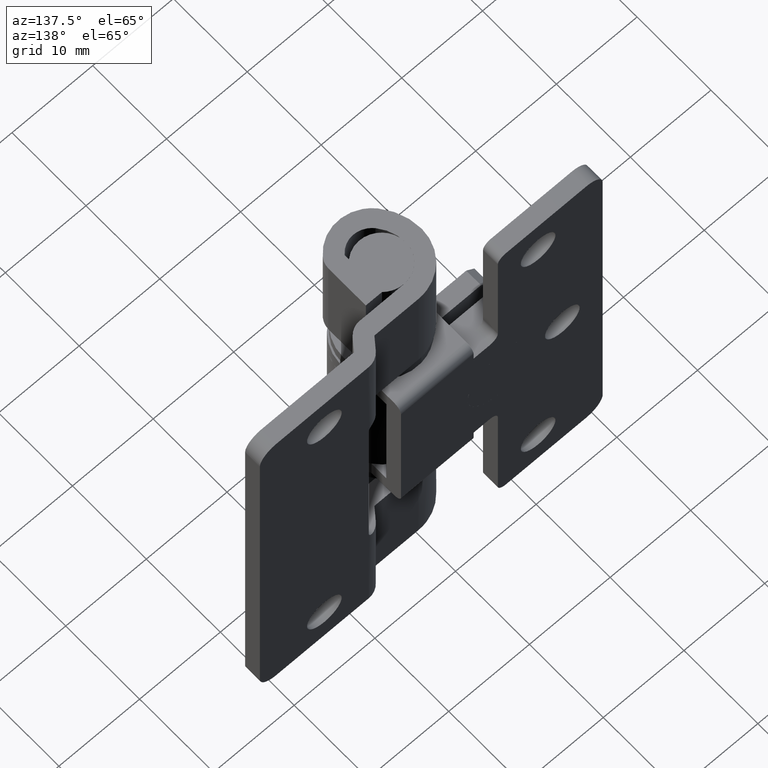
[diagram: clean part render]
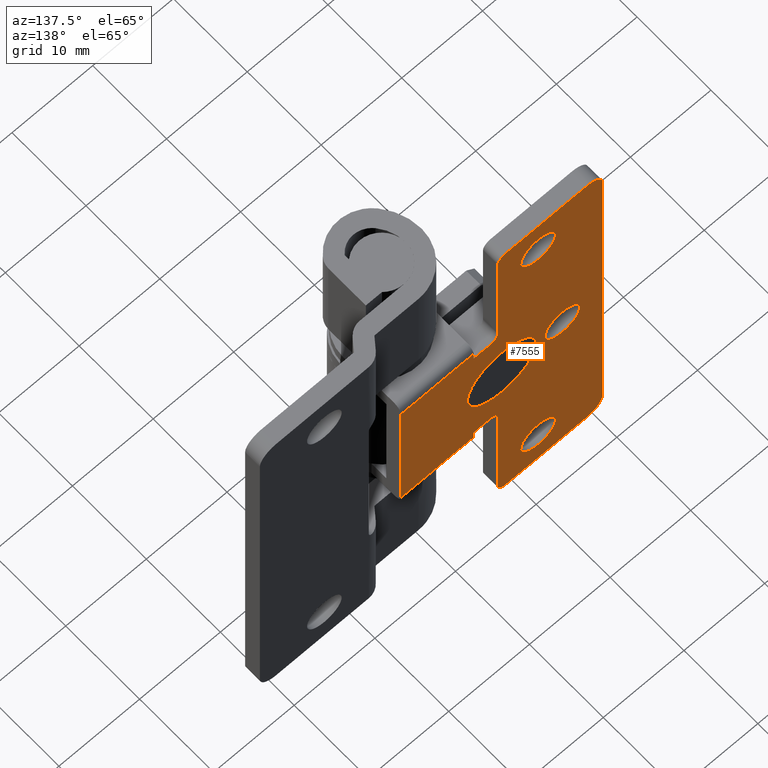
[diagram: same view with one face highlighted and labeled with its STEP entity id]
A machine part, auxiliary view. The second image highlights one B-rep face of the part: STEP entity #7555.
In plain terms, the highlighted face is a freeform B-spline surface patch.
Its self-contained STEP definition (entity closure, byte-faithful):
#5431=CARTESIAN_POINT('',(-4.279709512953119,7.000000000010230,25.501645497379219));
#5432=VERTEX_POINT('',#5431);
#5438=CARTESIAN_POINT('',(-8.499999999999831,7.0,20.750000000000000));
#5439=VERTEX_POINT('',#5438);
#5440=CARTESIAN_POINT('',(-4.279709512953119,7.000000000010230,25.501645497379219));
#5441=CARTESIAN_POINT('',(-4.249999999999831,7.0,25.251702508608169));
#5442=CARTESIAN_POINT('',(-4.249999999999830,7.0,25.0));
#5443=CARTESIAN_POINT('',(-4.249999999999830,6.999999999999999,20.749999999999996));
#5444=CARTESIAN_POINT('',(-8.499999999999831,7.0,20.750000000000000));
#5452=(BOUNDED_CURVE()B_SPLINE_CURVE(2,(#5440,#5441,#5442,#5443,#5444),.UNSPECIFIED.,.F.,.U.)B_SPLINE_CURVE_WITH_KNOTS((3,2,3),(0.229562473508706,0.250000000000000,0.500000000000000),.UNSPECIFIED.)CURVE()GEOMETRIC_REPRESENTATION_ITEM()RATIONAL_B_SPLINE_CURVE((0.956026754174286,0.976055948325518,1.0,0.707106781186548,1.0))REPRESENTATION_ITEM(''));
#5453=EDGE_CURVE('',#5432,#5439,#5452,.T.);
#5455=CARTESIAN_POINT('',(-12.742072893314189,7.000000000034468,24.740543706692019));
#5456=VERTEX_POINT('',#5455);
#5457=CARTESIAN_POINT('',(-8.499999999999831,7.0,20.750000000000000));
#5458=CARTESIAN_POINT('',(-12.498000783815616,6.999999999999998,20.750000000000004));
#5459=CARTESIAN_POINT('',(-12.742072893314187,7.000000000034468,24.740543706692026));
#5467=(BOUNDED_CURVE()B_SPLINE_CURVE(2,(#5457,#5458,#5459),.UNSPECIFIED.,.F.,.U.)B_SPLINE_CURVE_WITH_KNOTS((3,3),(0.500000000000000,0.739332962218990),.UNSPECIFIED.)CURVE()GEOMETRIC_REPRESENTATION_ITEM()RATIONAL_B_SPLINE_CURVE((1.0,0.719603993310087,0.976072041623955))REPRESENTATION_ITEM(''));
#5468=EDGE_CURVE('',#5439,#5456,#5467,.T.);
#5542=CARTESIAN_POINT('',(-8.499999999999831,7.0,29.250000000000000));
#5543=VERTEX_POINT('',#5542);
#5544=CARTESIAN_POINT('',(-12.742072893314193,7.000000000034468,24.740543706692023));
#5545=CARTESIAN_POINT('',(-12.749999999999835,7.000000000000001,24.870150755697736));
#5546=CARTESIAN_POINT('',(-12.749999999999829,7.0,25.0));
#5547=CARTESIAN_POINT('',(-12.749999999999831,6.999999999999999,29.250000000000004));
#5548=CARTESIAN_POINT('',(-8.499999999999831,7.0,29.250000000000000));
#5556=(BOUNDED_CURVE()B_SPLINE_CURVE(2,(#5544,#5545,#5546,#5547,#5548),.UNSPECIFIED.,.F.,.U.)B_SPLINE_CURVE_WITH_KNOTS((3,2,3),(0.739332962218989,0.750000000000000,1.0),.UNSPECIFIED.)CURVE()GEOMETRIC_REPRESENTATION_ITEM()RATIONAL_B_SPLINE_CURVE((0.976072041623953,0.987502787876460,1.0,0.707106781186548,1.0))REPRESENTATION_ITEM(''));
#5557=EDGE_CURVE('',#5456,#5543,#5556,.T.);
#5559=CARTESIAN_POINT('',(-8.499999999999831,7.0,29.250000000000000));
#5560=CARTESIAN_POINT('',(-4.725258264862580,6.999999999999999,29.250000000000004));
#5561=CARTESIAN_POINT('',(-4.279709512953120,7.000000000010231,25.501645497379215));
#5569=(BOUNDED_CURVE()B_SPLINE_CURVE(2,(#5559,#5560,#5561),.UNSPECIFIED.,.F.,.U.)B_SPLINE_CURVE_WITH_KNOTS((3,3),(0.0,0.229562473508706),.UNSPECIFIED.)CURVE()GEOMETRIC_REPRESENTATION_ITEM()RATIONAL_B_SPLINE_CURVE((1.0,0.731050832861029,0.956026754174286))REPRESENTATION_ITEM(''));
#5570=EDGE_CURVE('',#5543,#5432,#5569,.T.);
#5611=CARTESIAN_POINT('',(-15.143372267518879,7.000000000000001,45.168687055905963));
#5612=VERTEX_POINT('',#5611);
#5618=CARTESIAN_POINT('',(-12.999999999999821,7.0,47.149999999999999));
#5619=VERTEX_POINT('',#5618);
#5620=CARTESIAN_POINT('',(-12.999999999999821,7.0,47.149999999999999));
#5621=CARTESIAN_POINT('',(-14.987439556895518,7.0,47.150000000000013));
#5622=CARTESIAN_POINT('',(-15.143372267518879,7.000000000000001,45.168687055905956));
#5630=(BOUNDED_CURVE()B_SPLINE_CURVE(2,(#5620,#5621,#5622),.UNSPECIFIED.,.F.,.U.)B_SPLINE_CURVE_WITH_KNOTS((3,3),(0.0,0.236331300618197),.UNSPECIFIED.)CURVE()GEOMETRIC_REPRESENTATION_ITEM()RATIONAL_B_SPLINE_CURVE((1.0,0.723120658622267,0.969723356141409))REPRESENTATION_ITEM(''));
#5631=EDGE_CURVE('',#5619,#5612,#5630,.T.);
#5633=CARTESIAN_POINT('',(-10.856627732480771,7.0,44.831312944094037));
#5634=VERTEX_POINT('',#5633);
#5635=CARTESIAN_POINT('',(-10.856627732480769,7.0,44.831312944094037));
#5636=CARTESIAN_POINT('',(-10.849999999999829,7.0,44.915526269841997));
#5637=CARTESIAN_POINT('',(-10.849999999999820,7.0,45.0));
#5638=CARTESIAN_POINT('',(-10.849999999999824,6.999999999999999,47.149999999999999));
#5639=CARTESIAN_POINT('',(-12.999999999999821,7.0,47.149999999999999));
#5647=(BOUNDED_CURVE()B_SPLINE_CURVE(2,(#5635,#5636,#5637,#5638,#5639),.UNSPECIFIED.,.F.,.U.)B_SPLINE_CURVE_WITH_KNOTS((3,2,3),(0.736331300618196,0.750000000000000,1.0),.UNSPECIFIED.)CURVE()GEOMETRIC_REPRESENTATION_ITEM()RATIONAL_B_SPLINE_CURVE((0.969723356141407,0.983986122564280,1.0,0.707106781186547,1.0))REPRESENTATION_ITEM(''));
#5648=EDGE_CURVE('',#5634,#5619,#5647,.T.);
#5724=CARTESIAN_POINT('',(-12.999999999999821,7.0,42.850000000000001));
#5725=VERTEX_POINT('',#5724);
#5726=CARTESIAN_POINT('',(-12.999999999999821,7.0,42.850000000000001));
#5727=CARTESIAN_POINT('',(-11.012560443104137,6.999999999999999,42.850000000000001));
#5728=CARTESIAN_POINT('',(-10.856627732480765,7.0,44.831312944094037));
#5736=(BOUNDED_CURVE()B_SPLINE_CURVE(2,(#5726,#5727,#5728),.UNSPECIFIED.,.F.,.U.)B_SPLINE_CURVE_WITH_KNOTS((3,3),(0.500000000000000,0.736331300618196),.UNSPECIFIED.)CURVE()GEOMETRIC_REPRESENTATION_ITEM()RATIONAL_B_SPLINE_CURVE((1.0,0.723120658622268,0.969723356141406))REPRESENTATION_ITEM(''));
#5737=EDGE_CURVE('',#5725,#5634,#5736,.T.);
#5739=CARTESIAN_POINT('',(-15.143372267518878,7.000000000000001,45.168687055905956));
#5740=CARTESIAN_POINT('',(-15.149999999999824,7.000000000000001,45.084473730158003));
#5741=CARTESIAN_POINT('',(-15.149999999999819,7.0,45.0));
#5742=CARTESIAN_POINT('',(-15.149999999999826,6.999999999999999,42.850000000000001));
#5743=CARTESIAN_POINT('',(-12.999999999999821,7.0,42.850000000000001));
#5751=(BOUNDED_CURVE()B_SPLINE_CURVE(2,(#5739,#5740,#5741,#5742,#5743),.UNSPECIFIED.,.F.,.U.)B_SPLINE_CURVE_WITH_KNOTS((3,2,3),(0.236331300618197,0.250000000000000,0.500000000000000),.UNSPECIFIED.)CURVE()GEOMETRIC_REPRESENTATION_ITEM()RATIONAL_B_SPLINE_CURVE((0.969723356141409,0.983986122564281,1.0,0.707106781186547,1.0))REPRESENTATION_ITEM(''));
#5752=EDGE_CURVE('',#5612,#5725,#5751,.T.);
#5793=CARTESIAN_POINT('',(-18.143372267519059,7.0,25.168687055905959));
#5794=VERTEX_POINT('',#5793);
#5800=CARTESIAN_POINT('',(-16.0,7.0,27.149999999999999));
#5801=VERTEX_POINT('',#5800);
#5802=CARTESIAN_POINT('',(-16.0,7.0,27.149999999999999));
#5803=CARTESIAN_POINT('',(-17.987439556895694,7.0,27.150000000000006));
#5804=CARTESIAN_POINT('',(-18.143372267519059,7.000000000000001,25.168687055905956));
#5812=(BOUNDED_CURVE()B_SPLINE_CURVE(2,(#5802,#5803,#5804),.UNSPECIFIED.,.F.,.U.)B_SPLINE_CURVE_WITH_KNOTS((3,3),(0.0,0.236331300618197),.UNSPECIFIED.)CURVE()GEOMETRIC_REPRESENTATION_ITEM()RATIONAL_B_SPLINE_CURVE((1.0,0.723120658622267,0.969723356141408))REPRESENTATION_ITEM(''));
#5813=EDGE_CURVE('',#5801,#5794,#5812,.T.);
#5815=CARTESIAN_POINT('',(-13.856627732480950,7.0,24.831312944094041));
#5816=VERTEX_POINT('',#5815);
#5817=CARTESIAN_POINT('',(-13.856627732480945,7.0,24.831312944094041));
#5818=CARTESIAN_POINT('',(-13.850000000000007,7.0,24.915526269842001));
#5819=CARTESIAN_POINT('',(-13.850000000000000,7.0,25.0));
#5820=CARTESIAN_POINT('',(-13.850000000000001,6.999999999999999,27.150000000000006));
#5821=CARTESIAN_POINT('',(-16.0,7.0,27.149999999999999));
#5829=(BOUNDED_CURVE()B_SPLINE_CURVE(2,(#5817,#5818,#5819,#5820,#5821),.UNSPECIFIED.,.F.,.U.)B_SPLINE_CURVE_WITH_KNOTS((3,2,3),(0.736331300618196,0.750000000000000,1.0),.UNSPECIFIED.)CURVE()GEOMETRIC_REPRESENTATION_ITEM()RATIONAL_B_SPLINE_CURVE((0.969723356141408,0.983986122564280,1.0,0.707106781186547,1.0))REPRESENTATION_ITEM(''));
#5830=EDGE_CURVE('',#5816,#5801,#5829,.T.);
#5906=CARTESIAN_POINT('',(-16.0,7.0,22.850000000000001));
#5907=VERTEX_POINT('',#5906);
#5908=CARTESIAN_POINT('',(-16.0,7.0,22.850000000000001));
#5909=CARTESIAN_POINT('',(-14.012560443104309,6.999999999999999,22.850000000000005));
#5910=CARTESIAN_POINT('',(-13.856627732480941,7.0,24.831312944094041));
#5918=(BOUNDED_CURVE()B_SPLINE_CURVE(2,(#5908,#5909,#5910),.UNSPECIFIED.,.F.,.U.)B_SPLINE_CURVE_WITH_KNOTS((3,3),(0.500000000000000,0.736331300618196),.UNSPECIFIED.)CURVE()GEOMETRIC_REPRESENTATION_ITEM()RATIONAL_B_SPLINE_CURVE((1.0,0.723120658622268,0.969723356141406))REPRESENTATION_ITEM(''));
#5919=EDGE_CURVE('',#5907,#5816,#5918,.T.);
#5921=CARTESIAN_POINT('',(-18.143372267519059,7.000000000000001,25.168687055905956));
#5922=CARTESIAN_POINT('',(-18.149999999999995,6.999999999999999,25.084473730158003));
#5923=CARTESIAN_POINT('',(-18.149999999999999,7.0,25.0));
#5924=CARTESIAN_POINT('',(-18.150000000000006,6.999999999999999,22.850000000000001));
#5925=CARTESIAN_POINT('',(-16.0,7.0,22.850000000000001));
#5933=(BOUNDED_CURVE()B_SPLINE_CURVE(2,(#5921,#5922,#5923,#5924,#5925),.UNSPECIFIED.,.F.,.U.)B_SPLINE_CURVE_WITH_KNOTS((3,2,3),(0.236331300618197,0.250000000000000,0.500000000000000),.UNSPECIFIED.)CURVE()GEOMETRIC_REPRESENTATION_ITEM()RATIONAL_B_SPLINE_CURVE((0.969723356141408,0.983986122564281,1.0,0.707106781186547,1.0))REPRESENTATION_ITEM(''));
#5934=EDGE_CURVE('',#5794,#5907,#5933,.T.);
#5975=CARTESIAN_POINT('',(-15.143372267518870,6.999999999999999,5.168687055905956));
#5976=VERTEX_POINT('',#5975);
#5982=CARTESIAN_POINT('',(-12.999999999999821,7.0,7.150000000000000));
#5983=VERTEX_POINT('',#5982);
#5984=CARTESIAN_POINT('',(-12.999999999999821,7.0,7.150000000000000));
#5985=CARTESIAN_POINT('',(-14.987439556895517,7.0,7.150000000000001));
#5986=CARTESIAN_POINT('',(-15.143372267518870,6.999999999999999,5.168687055905956));
#5994=(BOUNDED_CURVE()B_SPLINE_CURVE(2,(#5984,#5985,#5986),.UNSPECIFIED.,.F.,.U.)B_SPLINE_CURVE_WITH_KNOTS((3,3),(0.0,0.236331300618197),.UNSPECIFIED.)CURVE()GEOMETRIC_REPRESENTATION_ITEM()RATIONAL_B_SPLINE_CURVE((1.0,0.723120658622267,0.969723356141408))REPRESENTATION_ITEM(''));
#5995=EDGE_CURVE('',#5983,#5976,#5994,.T.);
#5997=CARTESIAN_POINT('',(-10.856627732480771,6.999999999999999,4.831312944094044));
#5998=VERTEX_POINT('',#5997);
#5999=CARTESIAN_POINT('',(-10.856627732480771,6.999999999999999,4.831312944094044));
#6000=CARTESIAN_POINT('',(-10.849999999999824,7.0,4.915526269841998));
#6001=CARTESIAN_POINT('',(-10.849999999999820,7.0,5.0));
#6002=CARTESIAN_POINT('',(-10.849999999999824,6.999999999999999,7.150000000000003));
#6003=CARTESIAN_POINT('',(-12.999999999999821,7.0,7.150000000000000));
#6011=(BOUNDED_CURVE()B_SPLINE_CURVE(2,(#5999,#6000,#6001,#6002,#6003),.UNSPECIFIED.,.F.,.U.)B_SPLINE_CURVE_WITH_KNOTS((3,2,3),(0.736331300618197,0.750000000000000,1.0),.UNSPECIFIED.)CURVE()GEOMETRIC_REPRESENTATION_ITEM()RATIONAL_B_SPLINE_CURVE((0.969723356141408,0.983986122564281,1.0,0.707106781186547,1.0))REPRESENTATION_ITEM(''));
#6012=EDGE_CURVE('',#5998,#5983,#6011,.T.);
#6088=CARTESIAN_POINT('',(-12.999999999999821,7.0,2.850000000000000));
#6089=VERTEX_POINT('',#6088);
#6090=CARTESIAN_POINT('',(-12.999999999999821,7.0,2.850000000000000));
#6091=CARTESIAN_POINT('',(-11.012560443104137,6.999999999999999,2.850000000000000));
#6092=CARTESIAN_POINT('',(-10.856627732480765,6.999999999999999,4.831312944094044));
#6100=(BOUNDED_CURVE()B_SPLINE_CURVE(2,(#6090,#6091,#6092),.UNSPECIFIED.,.F.,.U.)B_SPLINE_CURVE_WITH_KNOTS((3,3),(0.500000000000000,0.736331300618196),.UNSPECIFIED.)CURVE()GEOMETRIC_REPRESENTATION_ITEM()RATIONAL_B_SPLINE_CURVE((1.0,0.723120658622268,0.969723356141406))REPRESENTATION_ITEM(''));
#6101=EDGE_CURVE('',#6089,#5998,#6100,.T.);
#6103=CARTESIAN_POINT('',(-15.143372267518874,6.999999999999999,5.168687055905956));
#6104=CARTESIAN_POINT('',(-15.149999999999816,7.0,5.084473730158002));
#6105=CARTESIAN_POINT('',(-15.149999999999819,7.0,5.0));
#6106=CARTESIAN_POINT('',(-15.149999999999826,6.999999999999999,2.850000000000000));
#6107=CARTESIAN_POINT('',(-12.999999999999821,7.0,2.850000000000000));
#6115=(BOUNDED_CURVE()B_SPLINE_CURVE(2,(#6103,#6104,#6105,#6106,#6107),.UNSPECIFIED.,.F.,.U.)B_SPLINE_CURVE_WITH_KNOTS((3,2,3),(0.236331300618196,0.250000000000000,0.500000000000000),.UNSPECIFIED.)CURVE()GEOMETRIC_REPRESENTATION_ITEM()RATIONAL_B_SPLINE_CURVE((0.969723356141408,0.983986122564281,1.0,0.707106781186547,1.0))REPRESENTATION_ITEM(''));
#6116=EDGE_CURVE('',#5976,#6089,#6115,.T.);
#6506=CARTESIAN_POINT('',(4.000000000000100,7.0,16.0));
#6507=VERTEX_POINT('',#6506);
#6528=CARTESIAN_POINT('',(-5.0,7.0,16.0));
#6529=VERTEX_POINT('',#6528);
#6543=CARTESIAN_POINT('',(4.000000000000100,7.0,16.0));
#6544=CARTESIAN_POINT('',(-5.0,7.0,16.0));
#6545=QUASI_UNIFORM_CURVE('',1,(#6543,#6544),.UNSPECIFIED.,.F.,.U.);
#6546=EDGE_CURVE('',#6507,#6529,#6545,.T.);
#6567=CARTESIAN_POINT('',(-5.0,7.0,34.0));
#6568=VERTEX_POINT('',#6567);
#6589=CARTESIAN_POINT('',(4.000000000000100,7.0,34.0));
#6590=VERTEX_POINT('',#6589);
#6604=CARTESIAN_POINT('',(-5.0,7.0,34.0));
#6605=CARTESIAN_POINT('',(4.000000000000100,7.0,34.0));
#6606=QUASI_UNIFORM_CURVE('',1,(#6604,#6605),.UNSPECIFIED.,.F.,.U.);
#6607=EDGE_CURVE('',#6568,#6590,#6606,.T.);
#6643=CARTESIAN_POINT('',(-6.999999999999800,7.0,33.0));
#6644=VERTEX_POINT('',#6643);
#6650=CARTESIAN_POINT('',(-7.999999999999799,7.0,34.0));
#6651=VERTEX_POINT('',#6650);
#6652=CARTESIAN_POINT('',(-7.999999999999799,7.0,34.0));
#6653=CARTESIAN_POINT('',(-7.999999999999800,6.999999999999999,33.0));
#6654=CARTESIAN_POINT('',(-6.999999999999800,7.0,33.0));
#6662=(BOUNDED_CURVE()B_SPLINE_CURVE(2,(#6652,#6653,#6654),.UNSPECIFIED.,.F.,.U.)CURVE()GEOMETRIC_REPRESENTATION_ITEM()QUASI_UNIFORM_CURVE()RATIONAL_B_SPLINE_CURVE((1.0,0.707106781186548,1.0))REPRESENTATION_ITEM(''));
#6663=EDGE_CURVE('',#6651,#6644,#6662,.T.);
#6704=CARTESIAN_POINT('',(-7.999999999999799,7.0,16.0));
#6705=VERTEX_POINT('',#6704);
#6711=CARTESIAN_POINT('',(-6.999999999999800,7.0,17.0));
#6712=VERTEX_POINT('',#6711);
#6713=CARTESIAN_POINT('',(-6.999999999999800,7.0,17.0));
#6714=CARTESIAN_POINT('',(-7.999999999999800,6.999999999999999,17.000000000000004));
#6715=CARTESIAN_POINT('',(-7.999999999999799,7.0,16.0));
#6723=(BOUNDED_CURVE()B_SPLINE_CURVE(2,(#6713,#6714,#6715),.UNSPECIFIED.,.F.,.U.)CURVE()GEOMETRIC_REPRESENTATION_ITEM()QUASI_UNIFORM_CURVE()RATIONAL_B_SPLINE_CURVE((1.0,0.707106781186548,1.0))REPRESENTATION_ITEM(''));
#6724=EDGE_CURVE('',#6712,#6705,#6723,.T.);
#6765=CARTESIAN_POINT('',(-7.999999999999799,7.0,49.0));
#6766=VERTEX_POINT('',#6765);
#6772=CARTESIAN_POINT('',(-8.999999999999799,7.0,50.0));
#6773=VERTEX_POINT('',#6772);
#6774=CARTESIAN_POINT('',(-8.999999999999799,7.0,50.0));
#6775=CARTESIAN_POINT('',(-7.999999999999800,6.999999999999999,50.0));
#6776=CARTESIAN_POINT('',(-7.999999999999799,7.0,49.0));
#6784=(BOUNDED_CURVE()B_SPLINE_CURVE(2,(#6774,#6775,#6776),.UNSPECIFIED.,.F.,.U.)CURVE()GEOMETRIC_REPRESENTATION_ITEM()QUASI_UNIFORM_CURVE()RATIONAL_B_SPLINE_CURVE((1.0,0.707106781186548,1.0))REPRESENTATION_ITEM(''));
#6785=EDGE_CURVE('',#6773,#6766,#6784,.T.);
#6826=CARTESIAN_POINT('',(-8.999999999999799,7.0,0.0));
#6827=VERTEX_POINT('',#6826);
#6833=CARTESIAN_POINT('',(-7.999999999999799,7.0,1.0));
#6834=VERTEX_POINT('',#6833);
#6835=CARTESIAN_POINT('',(-7.999999999999799,7.0,1.0));
#6836=CARTESIAN_POINT('',(-7.999999999999800,6.999999999999999,0.0));
#6837=CARTESIAN_POINT('',(-8.999999999999799,7.0,0.0));
#6845=(BOUNDED_CURVE()B_SPLINE_CURVE(2,(#6835,#6836,#6837),.UNSPECIFIED.,.F.,.U.)CURVE()GEOMETRIC_REPRESENTATION_ITEM()QUASI_UNIFORM_CURVE()RATIONAL_B_SPLINE_CURVE((1.0,0.707106781186548,1.0))REPRESENTATION_ITEM(''));
#6846=EDGE_CURVE('',#6834,#6827,#6845,.T.);
#6870=CARTESIAN_POINT('',(-21.0,7.0,48.0));
#6871=VERTEX_POINT('',#6870);
#6872=CARTESIAN_POINT('',(-19.0,7.0,50.0));
#6873=VERTEX_POINT('',#6872);
#6874=CARTESIAN_POINT('',(-21.0,7.0,48.0));
#6875=CARTESIAN_POINT('',(-21.000000000000004,6.999999999999999,50.0));
#6876=CARTESIAN_POINT('',(-19.0,7.0,50.0));
#6884=(BOUNDED_CURVE()B_SPLINE_CURVE(2,(#6874,#6875,#6876),.UNSPECIFIED.,.F.,.U.)CURVE()GEOMETRIC_REPRESENTATION_ITEM()QUASI_UNIFORM_CURVE()RATIONAL_B_SPLINE_CURVE((1.0,0.707106781186548,1.0))REPRESENTATION_ITEM(''));
#6885=EDGE_CURVE('',#6871,#6873,#6884,.T.);
#6931=CARTESIAN_POINT('',(-19.0,7.0,0.0));
#6932=VERTEX_POINT('',#6931);
#6933=CARTESIAN_POINT('',(-21.0,7.0,2.0));
#6934=VERTEX_POINT('',#6933);
#6935=CARTESIAN_POINT('',(-19.0,7.0,0.0));
#6936=CARTESIAN_POINT('',(-21.000000000000004,6.999999999999999,0.0));
#6937=CARTESIAN_POINT('',(-21.0,7.0,2.0));
#6945=(BOUNDED_CURVE()B_SPLINE_CURVE(2,(#6935,#6936,#6937),.UNSPECIFIED.,.F.,.U.)CURVE()GEOMETRIC_REPRESENTATION_ITEM()QUASI_UNIFORM_CURVE()RATIONAL_B_SPLINE_CURVE((1.0,0.707106781186548,1.0))REPRESENTATION_ITEM(''));
#6946=EDGE_CURVE('',#6932,#6934,#6945,.T.);
#6983=CARTESIAN_POINT('',(-7.999999999999799,7.0,16.0));
#6984=CARTESIAN_POINT('',(-7.999999999999799,7.0,1.0));
#6985=QUASI_UNIFORM_CURVE('',1,(#6983,#6984),.UNSPECIFIED.,.F.,.U.);
#6986=EDGE_CURVE('',#6705,#6834,#6985,.T.);
#7011=CARTESIAN_POINT('',(-5.0,7.0,17.0));
#7012=VERTEX_POINT('',#7011);
#7013=CARTESIAN_POINT('',(-5.0,7.0,17.0));
#7014=CARTESIAN_POINT('',(-6.999999999999800,7.0,17.0));
#7015=QUASI_UNIFORM_CURVE('',1,(#7013,#7014),.UNSPECIFIED.,.F.,.U.);
#7016=EDGE_CURVE('',#7012,#6712,#7015,.T.);
#7031=CARTESIAN_POINT('',(-5.0,7.0,33.0));
#7032=VERTEX_POINT('',#7031);
#7033=CARTESIAN_POINT('',(-6.999999999999800,7.0,33.0));
#7034=CARTESIAN_POINT('',(-5.0,7.0,33.0));
#7035=QUASI_UNIFORM_CURVE('',1,(#7033,#7034),.UNSPECIFIED.,.F.,.U.);
#7036=EDGE_CURVE('',#6644,#7032,#7035,.T.);
#7065=CARTESIAN_POINT('',(-7.999999999999799,7.0,49.0));
#7066=CARTESIAN_POINT('',(-7.999999999999799,7.0,34.0));
#7067=QUASI_UNIFORM_CURVE('',1,(#7065,#7066),.UNSPECIFIED.,.F.,.U.);
#7068=EDGE_CURVE('',#6766,#6651,#7067,.T.);
#7079=CARTESIAN_POINT('',(-21.0,7.0,2.0));
#7080=CARTESIAN_POINT('',(-21.0,7.0,48.0));
#7081=QUASI_UNIFORM_CURVE('',1,(#7079,#7080),.UNSPECIFIED.,.F.,.U.);
#7082=EDGE_CURVE('',#6934,#6871,#7081,.T.);
#7105=CARTESIAN_POINT('',(-8.999999999999799,7.0,50.0));
#7106=CARTESIAN_POINT('',(-19.0,7.0,50.0));
#7107=QUASI_UNIFORM_CURVE('',1,(#7105,#7106),.UNSPECIFIED.,.F.,.U.);
#7108=EDGE_CURVE('',#6773,#6873,#7107,.T.);
#7119=CARTESIAN_POINT('',(-5.0,7.0,16.0));
#7120=CARTESIAN_POINT('',(-5.0,7.0,17.0));
#7121=QUASI_UNIFORM_CURVE('',1,(#7119,#7120),.UNSPECIFIED.,.F.,.U.);
#7122=EDGE_CURVE('',#6529,#7012,#7121,.T.);
#7153=CARTESIAN_POINT('',(-8.999999999999799,7.0,0.0));
#7154=CARTESIAN_POINT('',(-19.0,7.0,0.0));
#7155=QUASI_UNIFORM_CURVE('',1,(#7153,#7154),.UNSPECIFIED.,.F.,.U.);
#7156=EDGE_CURVE('',#6827,#6932,#7155,.T.);
#7173=CARTESIAN_POINT('',(4.000000000000100,7.0,16.0));
#7174=CARTESIAN_POINT('',(4.000000000000100,7.0,34.0));
#7175=QUASI_UNIFORM_CURVE('',1,(#7173,#7174),.UNSPECIFIED.,.F.,.U.);
#7176=EDGE_CURVE('',#6507,#6590,#7175,.T.);
#7306=CARTESIAN_POINT('',(-5.0,7.0,33.0));
#7307=CARTESIAN_POINT('',(-5.0,7.0,34.0));
#7308=QUASI_UNIFORM_CURVE('',1,(#7306,#7307),.UNSPECIFIED.,.F.,.U.);
#7309=EDGE_CURVE('',#7032,#6568,#7308,.T.);
#7506=CARTESIAN_POINT('',(-22.248749951545161,7.0,-2.497499903090299));
#7507=CARTESIAN_POINT('',(-22.248749951545161,7.0,52.497501244194808));
#7508=CARTESIAN_POINT('',(5.248750622097508,7.0,-2.497499903090299));
#7509=CARTESIAN_POINT('',(5.248750622097508,7.0,52.497501244194808));
#7510=B_SPLINE_SURFACE_WITH_KNOTS('',1,1,((#7506,#7508),(#7507,#7509)),.UNSPECIFIED.,.F.,.F.,.U.,(2,2),(2,2),(0.0,54.995001147285109),(0.0,27.497500573642672),.UNSPECIFIED.);
#7511=ORIENTED_EDGE('',*,*,#7309,.T.);
#7512=ORIENTED_EDGE('',*,*,#6607,.T.);
#7513=ORIENTED_EDGE('',*,*,#7176,.F.);
#7514=ORIENTED_EDGE('',*,*,#6546,.T.);
#7515=ORIENTED_EDGE('',*,*,#7122,.T.);
#7516=ORIENTED_EDGE('',*,*,#7016,.T.);
#7517=ORIENTED_EDGE('',*,*,#6724,.T.);
#7518=ORIENTED_EDGE('',*,*,#6986,.T.);
#7519=ORIENTED_EDGE('',*,*,#6846,.T.);
#7520=ORIENTED_EDGE('',*,*,#7156,.T.);
#7521=ORIENTED_EDGE('',*,*,#6946,.T.);
#7522=ORIENTED_EDGE('',*,*,#7082,.T.);
#7523=ORIENTED_EDGE('',*,*,#6885,.T.);
#7524=ORIENTED_EDGE('',*,*,#7108,.F.);
#7525=ORIENTED_EDGE('',*,*,#6785,.T.);
#7526=ORIENTED_EDGE('',*,*,#7068,.T.);
#7527=ORIENTED_EDGE('',*,*,#6663,.T.);
#7528=ORIENTED_EDGE('',*,*,#7036,.T.);
#7529=EDGE_LOOP('',(#7511,#7512,#7513,#7514,#7515,#7516,#7517,#7518,#7519,#7520,#7521,#7522,#7523,#7524,#7525,#7526,#7527,#7528));
#7530=FACE_OUTER_BOUND('',#7529,.T.);
#7531=ORIENTED_EDGE('',*,*,#6101,.T.);
#7532=ORIENTED_EDGE('',*,*,#6012,.T.);
#7533=ORIENTED_EDGE('',*,*,#5995,.T.);
#7534=ORIENTED_EDGE('',*,*,#6116,.T.);
#7535=EDGE_LOOP('',(#7531,#7532,#7533,#7534));
#7536=FACE_BOUND('',#7535,.T.);
#7537=ORIENTED_EDGE('',*,*,#5919,.T.);
#7538=ORIENTED_EDGE('',*,*,#5830,.T.);
#7539=ORIENTED_EDGE('',*,*,#5813,.T.);
#7540=ORIENTED_EDGE('',*,*,#5934,.T.);
#7541=EDGE_LOOP('',(#7537,#7538,#7539,#7540));
#7542=FACE_BOUND('',#7541,.T.);
#7543=ORIENTED_EDGE('',*,*,#5737,.T.);
#7544=ORIENTED_EDGE('',*,*,#5648,.T.);
#7545=ORIENTED_EDGE('',*,*,#5631,.T.);
#7546=ORIENTED_EDGE('',*,*,#5752,.T.);
#7547=EDGE_LOOP('',(#7543,#7544,#7545,#7546));
#7548=FACE_BOUND('',#7547,.T.);
#7549=ORIENTED_EDGE('',*,*,#5468,.F.);
#7550=ORIENTED_EDGE('',*,*,#5453,.F.);
#7551=ORIENTED_EDGE('',*,*,#5570,.F.);
#7552=ORIENTED_EDGE('',*,*,#5557,.F.);
#7553=EDGE_LOOP('',(#7549,#7550,#7551,#7552));
#7554=FACE_BOUND('',#7553,.T.);
#7555=ADVANCED_FACE('',(#7530,#7536,#7542,#7548,#7554),#7510,.T.);